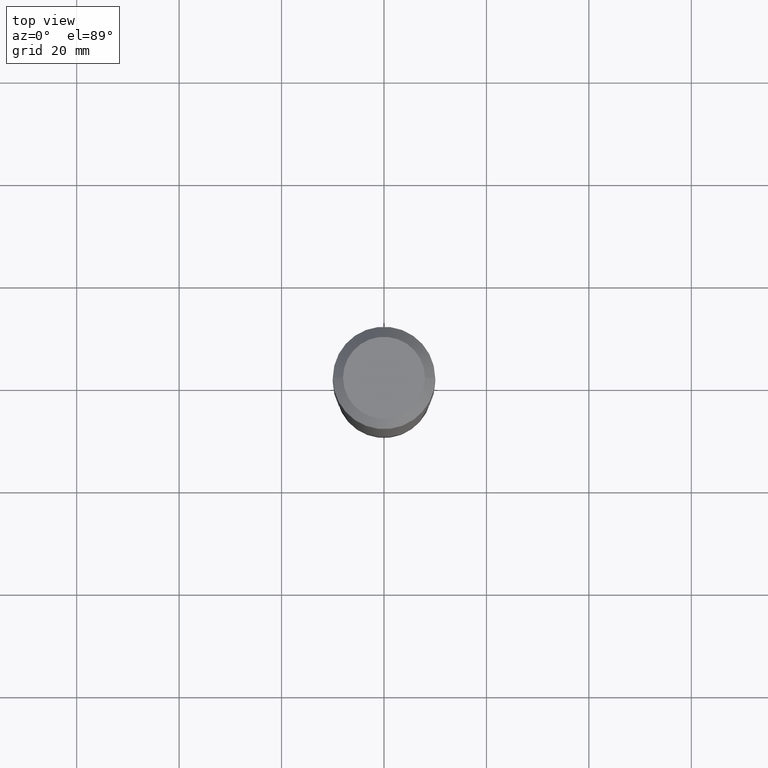
[diagram: clean part render]
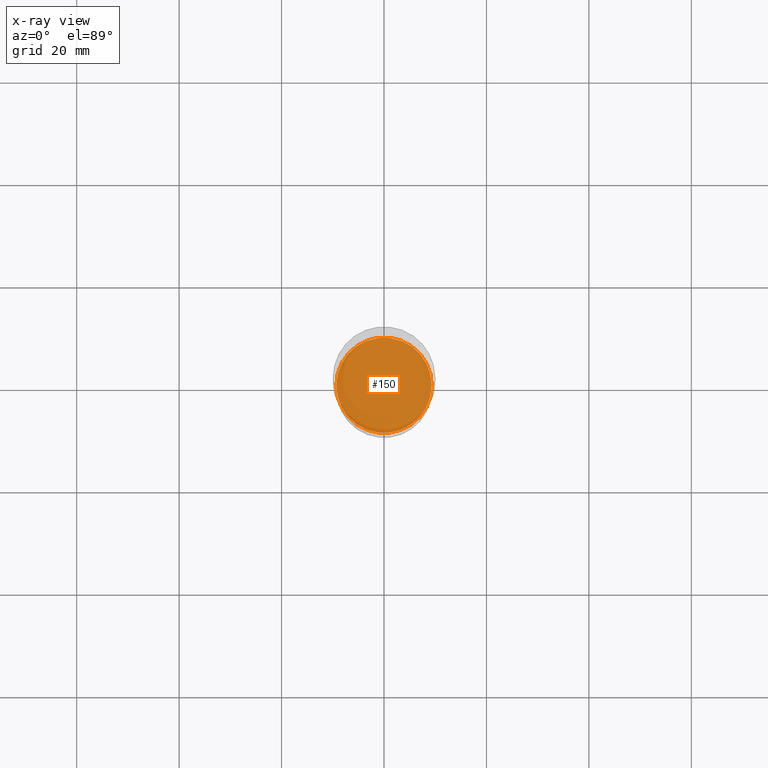
[diagram: x-ray — body ghosted, one internal face saturated and labeled with its STEP entity id]
A machine part, top view, then the same camera in x-ray: the body is ghosted and one INTERNAL B-rep face — a face not visible from any outside direction — is saturated and labeled: STEP entity #150.
In plain terms, the highlighted planar face has unit normal (-0, 0, 1).
Its self-contained STEP definition (entity closure, byte-faithful):
#11 = EDGE_CURVE ( 'NONE', #46, #237, #266, .T. ) ;
#12 = CARTESIAN_POINT ( 'NONE',  ( 8.223622501439377936E-29, -1.174115344626172983E-14, -3.362800000000000011 ) ) ;
#46 = VERTEX_POINT ( 'NONE', #216 ) ;
#70 = DIRECTION ( 'NONE',  ( 1.000000000000000000, -6.982962677686265922E-15, 4.876176775795935793E-29 ) ) ;
#106 = CARTESIAN_POINT ( 'NONE',  ( 8.223622501439377936E-29, -1.174115344626172983E-14, -3.362800000000000011 ) ) ;
#135 = EDGE_CURVE ( 'NONE', #237, #46, #413, .T. ) ;
#150 = ADVANCED_FACE ( 'NONE', ( #388 ), #304, .F. ) ;
#152 = DIRECTION ( 'NONE',  ( 1.000000000000000000, -6.982962677686264344E-15, 0.000000000000000000 ) ) ;
#163 = EDGE_LOOP ( 'NONE', ( #445, #321 ) ) ;
#186 = AXIS2_PLACEMENT_3D ( 'NONE', #12, #278, #152 ) ;
#195 = AXIS2_PLACEMENT_3D ( 'NONE', #106, #467, #70 ) ;
#216 = CARTESIAN_POINT ( 'NONE',  ( 0.3667000000000000814, -1.430180586016928277E-14, -3.362800000000000011 ) ) ;
#237 = VERTEX_POINT ( 'NONE', #397 ) ;
#257 = CARTESIAN_POINT ( 'NONE',  ( 8.223622501439377936E-29, -1.174115344626172983E-14, -3.362800000000000011 ) ) ;
#266 = CIRCLE ( 'NONE', #329, 0.3667000000000000814 ) ;
#278 = DIRECTION ( 'NONE',  ( -2.445468806185136597E-29, 3.491481338843145583E-15, 1.000000000000000000 ) ) ;
#304 = PLANE ( 'NONE',  #195 ) ;
#321 = ORIENTED_EDGE ( 'NONE', *, *, #135, .F. ) ;
#328 = DIRECTION ( 'NONE',  ( 1.000000000000000000, -6.982962677686264344E-15, 0.000000000000000000 ) ) ;
#329 = AXIS2_PLACEMENT_3D ( 'NONE', #257, #335, #328 ) ;
#335 = DIRECTION ( 'NONE',  ( -2.445468806185136597E-29, 3.491481338843145583E-15, 1.000000000000000000 ) ) ;
#388 = FACE_OUTER_BOUND ( 'NONE', #163, .T. ) ;
#397 = CARTESIAN_POINT ( 'NONE',  ( -0.3667000000000000814, -9.132944007055330274E-15, -3.362800000000000011 ) ) ;
#413 = CIRCLE ( 'NONE', #186, 0.3667000000000000814 ) ;
#445 = ORIENTED_EDGE ( 'NONE', *, *, #11, .F. ) ;
#467 = DIRECTION ( 'NONE',  ( -2.438088387897960049E-29, 3.491481338843145188E-15, 1.000000000000000000 ) ) ;